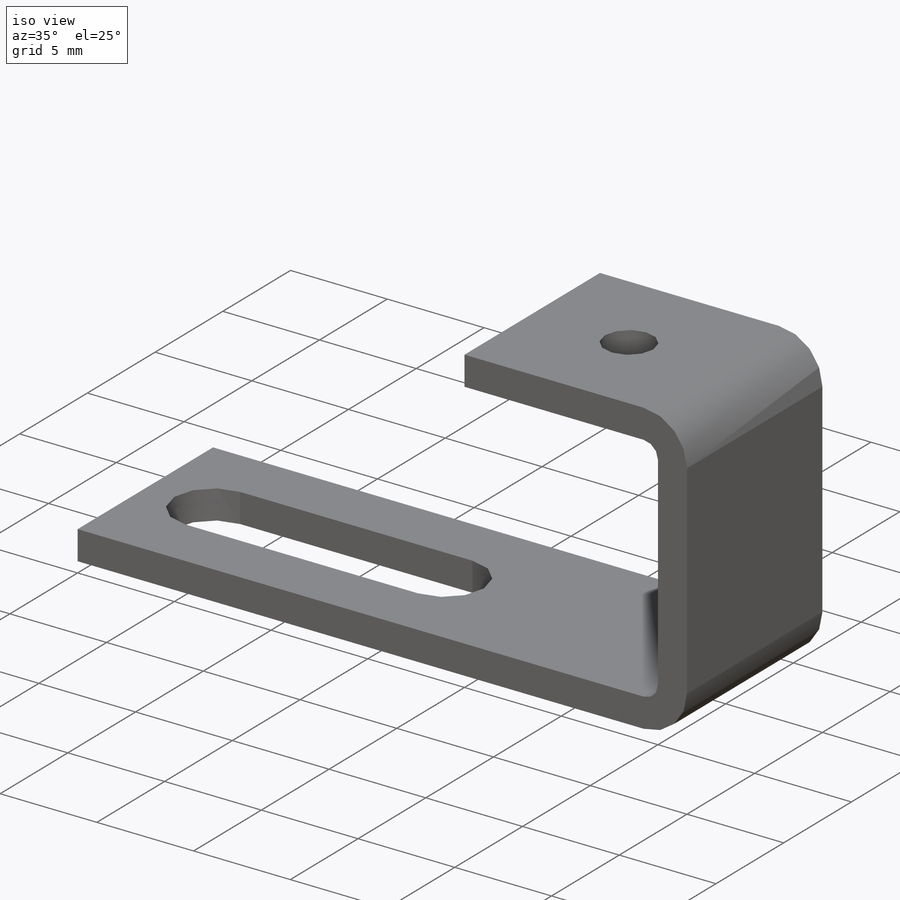
[diagram: iso view]
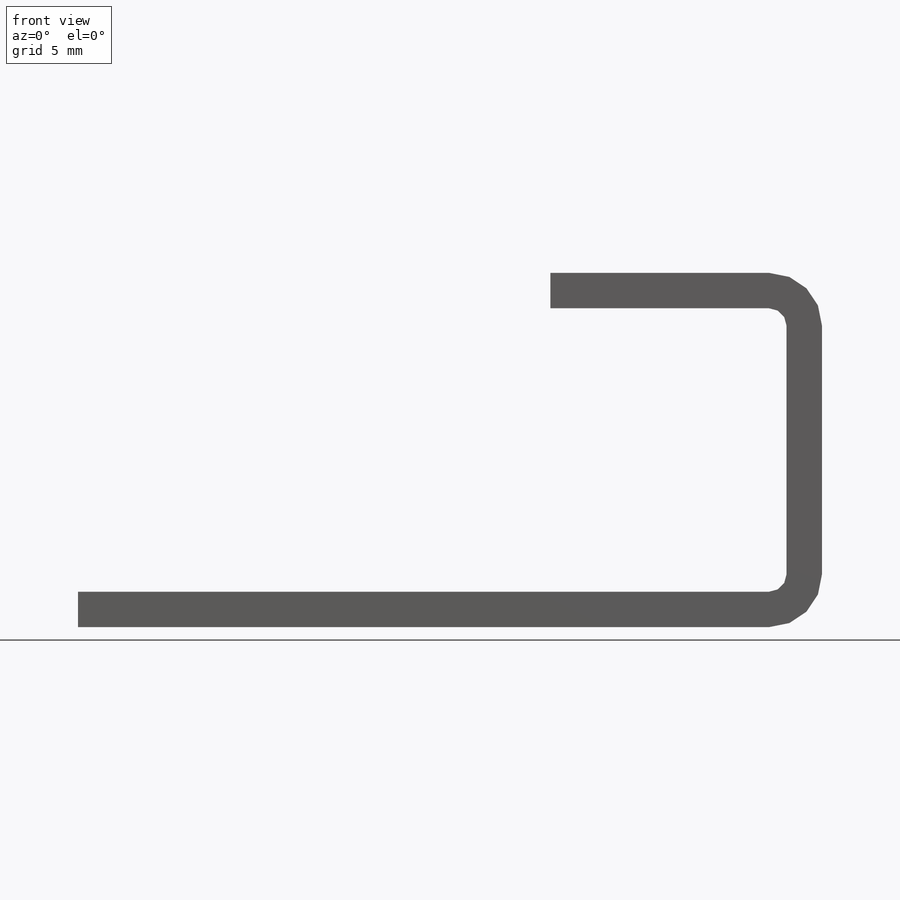
[diagram: front view]
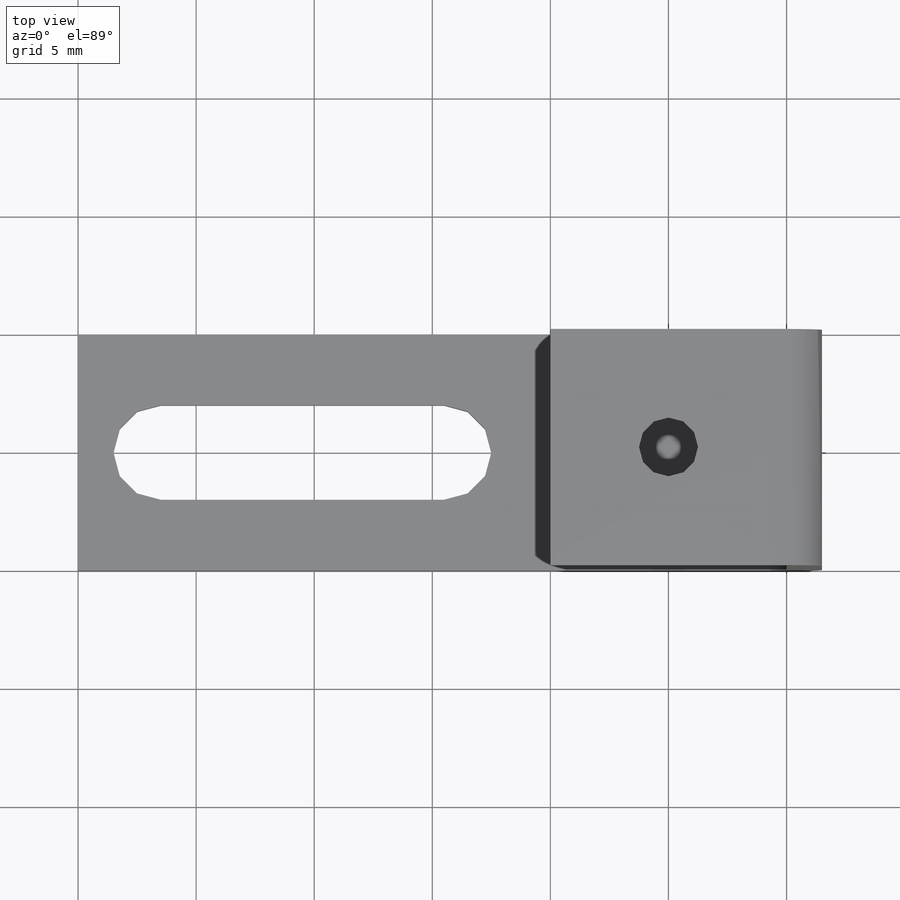
[diagram: top view]
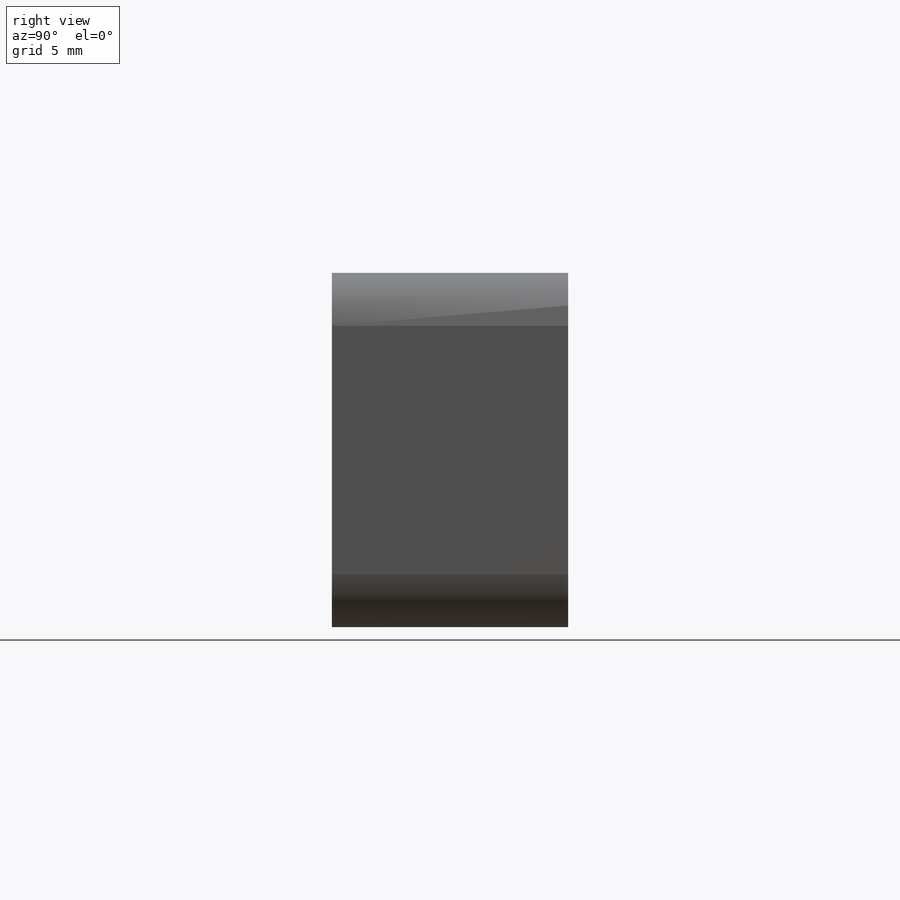
[diagram: right view]
SOLIDWORKS PART (.sldprt)
format: sldprt  version: not decoded by parser v0  size: 295,424 bytes
history: native  units: mm
features: sketch x16, sheet_metal_op x6, thread x4, plane x3, hole x2, material x1, cut_extrude x1 + 12 further entries (+10 scaffold rows collapsed)
feature tree (55):
  scaffold x10  (default folders/planes/origin — collapsed)
  material  "材質 <未指定>"
  plane  "前基準面"
  plane  "上基準面"
  plane  "右基準面"
  sketch  "草圖1"  dims[c1.D1=10.0mm c1.D2=12.0mm c1.D3=30.0mm c2.D1=0.7366mm c2.D2=0.5 c2.D3=0.0mm c2.D6=500.0mm]
  sheet_metal_op  "基材-凸緣1"
  sheet_metal_op  "基材彎折2"
  hole  "M3 螺紋孔1"  [1 undecoded]
  sketch  "草圖7"  dims[D1=5.0mm]
  sketch  "草圖6"  dims[hole-wizard template sketch: 59 standard entries collapsed; hole parameters kept: c18.貫穿螺孔鑽直徑=2.5mm c18.貫穿螺孔鑽深度=1.5mm]
  thread  "鑽孔螺紋1"  Diameter=3mm  [1 undecoded]
  hole  "Ø4.0mm 定位孔1"  [1 undecoded]
  sketch  "草圖9"  dims[c1.D1=4.0mm c1.D2=~6.250229mm c2.D1=12.0mm c2.D2=4.0mm]
  sketch  "草圖8"  dims[hole-wizard template sketch: 59 standard entries collapsed; hole parameters kept: c18.貫穿孔直徑=4.0mm c18.貫穿孔深度=1.5mm]
  sketch  "草圖11"  dims[D1=4.0mm D2=3.5mm D3=12.0mm D4=5.0mm]
  cut_extrude  "除料-伸長1"  Depth=10mm
  sketch  "彎折-線1"
  sketch  "邊界方塊1"
  sheet_metal_op  "鈑金1"
  "平板-型式1"
  sketch  "彎折-線2"
  sketch  "邊界方塊2"
  "草圖變形1"
  "平板-<基材彎折2>1"
  thread  "鈑金2"  Diameter=0.7366mm  [1 undecoded]
  sheet_metal_op  "平板-型式1"
  sketch  "彎折-線2"
  sketch  "邊界方塊2"
  "草圖變形1"
  "平板-<基材彎折1>1"
  "平板-<基材彎折2>1"
  thread  "鈑金3"  Diameter=0.7366mm  [1 undecoded]
  sheet_metal_op  "平板-型式1"
  sketch  "彎折-線2"
  sketch  "邊界方塊2"
  "草圖變形1"
  "平板-<基材彎折1>1"
  "平板-<基材彎折2>1"
  thread  "鈑金4"  Diameter=0.7366mm  [1 undecoded]
  sheet_metal_op  "平板-型式1"
  sketch  "彎折-線2"
  sketch  "邊界方塊2"
  "草圖變形1"
  "平板-<基材彎折1>1"
  "平板-<基材彎折2>1"
decode coverage: 11 of 29 modeling features carry decoded parameters; 12 rows unclassified (native names shown)
note: ~ marks probable driven/reference dimensions
note: 6 parameter values undecoded
note: suppression state not decoded; provenance and decode notes live in map.json
